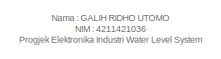
[diagram: root canvas - part 1/2, top left region]
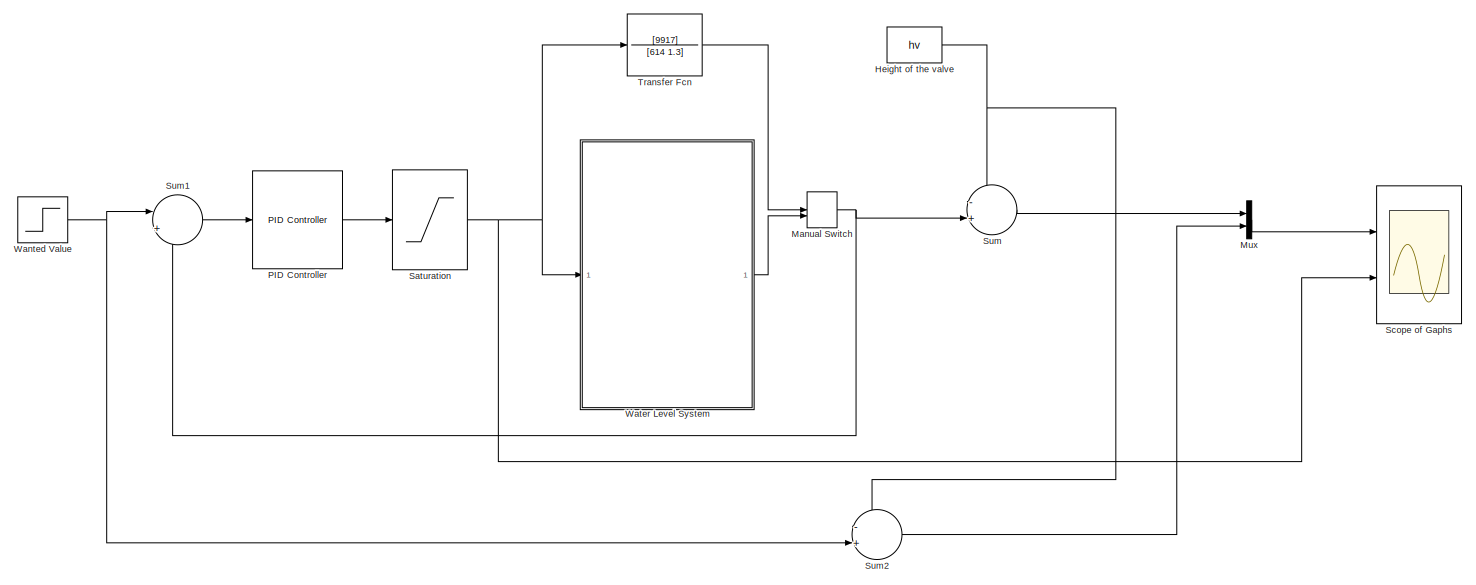
[diagram: root canvas - part 2/2, most of the canvas]
MODEL slx_f6bd16d4fdcb
KIND model
CONFIG AbsTol = auto
CONFIG EnableMultiTasking = off
CONFIG FixedStep = auto
CONFIG MaxStep = auto
CONFIG MinStep = auto
CONFIG RelTol = 1e-3
CONFIG SampleTimeConstraint = Unconstrained
CONFIG SolverName = VariableStepAuto
CONFIG StartTime = 0.0
CONFIG StopTime = 10.0
BLOCK [Constant] Height of the valve
  Value = hv
BLOCK [ManualSwitch] Manual Switch
BLOCK [Mux] Mux
  DisplayOption = bar
  Inputs = 2
  Ports = [2, 1]
BLOCK [Reference] PID Controller  REF=pid_lib/PID Controller
  Ports = [1, 1]
  SourceBlock = pid_lib/PID Controller
  SourceProductBaseCode = SL
  SourceType = PID 1dof
BLOCK [Saturate] Saturation
BLOCK [Scope] Scope of Gaphs
  Floating = off
  NumInputPorts = 2
  Ports = [2]
  ScopeSpecificationString = Simulink.scopes.TimeScopeBlockCfg('CurrentConfiguration', extmgr.ConfigurationSet(extmgr.Configuration('Core','General UI',true,'FigureColor',[1 1 1]),extmgr.Configuration('Core','Source UI',true),extmgr.Configuration('Sources','WiredSimulink',true),extmgr.Configuration('Visuals','Time Domain',true,'SerializedDisplays',{struct('MinYLimReal','-0.1326','MaxYLimReal','1.1174','YLabelReal','','MinYLim...<+1648ch>
BLOCK [Sum] Sum
  Inputs = -+|
  Ports = [2, 1]
BLOCK [Sum] Sum1
  Inputs = |+-
  NameLocation = top
  Ports = [2, 1]
BLOCK [Sum] Sum2
  Inputs = -+|
  Ports = [2, 1]
BLOCK [TransferFcn] Transfer Fcn
  Denominator = [614 1.3]
  Numerator = [9917]
BLOCK [Step] Wanted Value
  SampleTime = 0
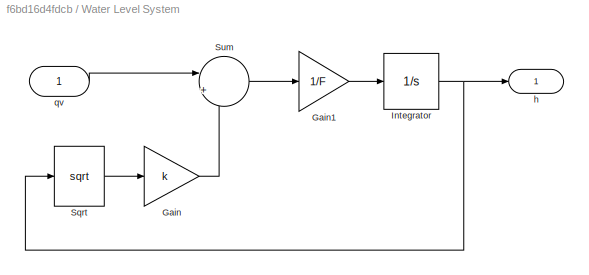
BLOCK [SubSystem] Water Level System
  Ports = [1, 1]
  RequestExecContextInheritance = off
BLOCK [Gain] Water Level System/Gain
  Gain = k
BLOCK [Gain] Water Level System/Gain1
  Gain = 1/F
BLOCK [Integrator] Water Level System/Integrator
  InitialCondition = 1.008*10^(-3)
  Ports = [1, 1]
BLOCK [Sqrt] Water Level System/Sqrt
BLOCK [Sum] Water Level System/Sum
  Inputs = |++
  Ports = [2, 1]
BLOCK [Outport] Water Level System/h
BLOCK [Inport] Water Level System/qv
ANNOTATION (root): Nama : GALIH RIDHO UTOMO NIM : 4211421036 Progjek Elektronika Industri Water Level System
NET Height of the valve:1 -> Sum2:1, Sum:1
NET Manual Switch:1 -> Sum1:2, Sum:2
LINE Mux:1 -> Scope of Gaphs:1
LINE PID Controller:1 -> Saturation:1
NET Saturation:1 -> Scope of Gaphs:2, Transfer Fcn:1, Water Level System:1
LINE Sum1:1 -> PID Controller:1
LINE Sum2:1 -> Mux:2
LINE Sum:1 -> Mux:1
LINE Transfer Fcn:1 -> Manual Switch:1
NET Wanted Value:1 -> Sum1:1, Sum2:2
LINE Water Level System/Gain1:1 -> Water Level System/Integrator:1
LINE Water Level System/Gain:1 -> Water Level System/Sum:2
NET Water Level System/Integrator:1 -> Water Level System/Sqrt:1, Water Level System/h:1
LINE Water Level System/Sqrt:1 -> Water Level System/Gain:1
LINE Water Level System/Sum:1 -> Water Level System/Gain1:1
LINE Water Level System/qv:1 -> Water Level System/Sum:1
LINE Water Level System:1 -> Manual Switch:2
note: NET lines group one-source signal fan-out (src -> all destinations, sorted); 1:1 wires keep LINE
